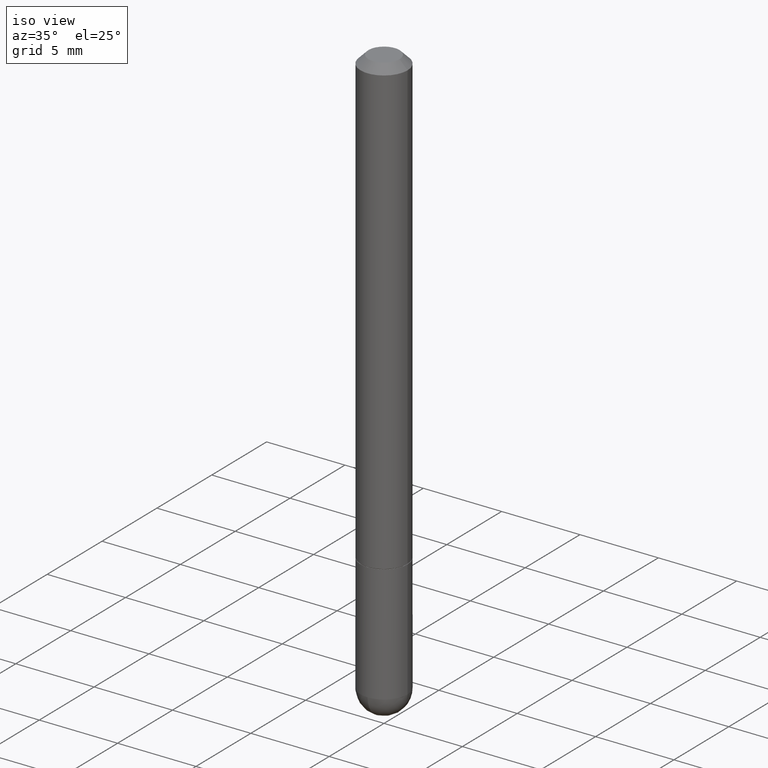
[diagram: clean part render]
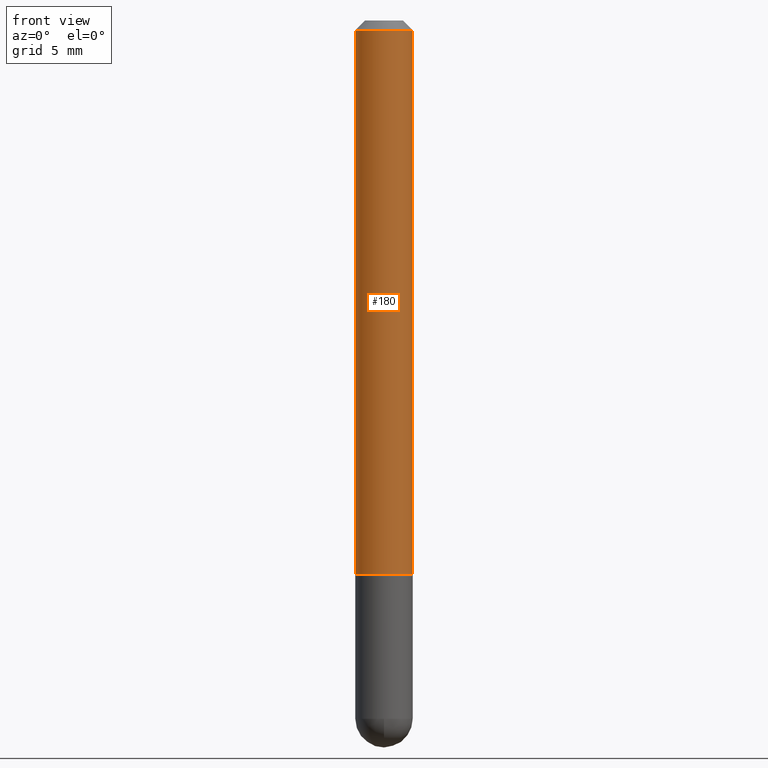
[diagram: tour spotlight — one face highlighted and labeled with its STEP entity id]
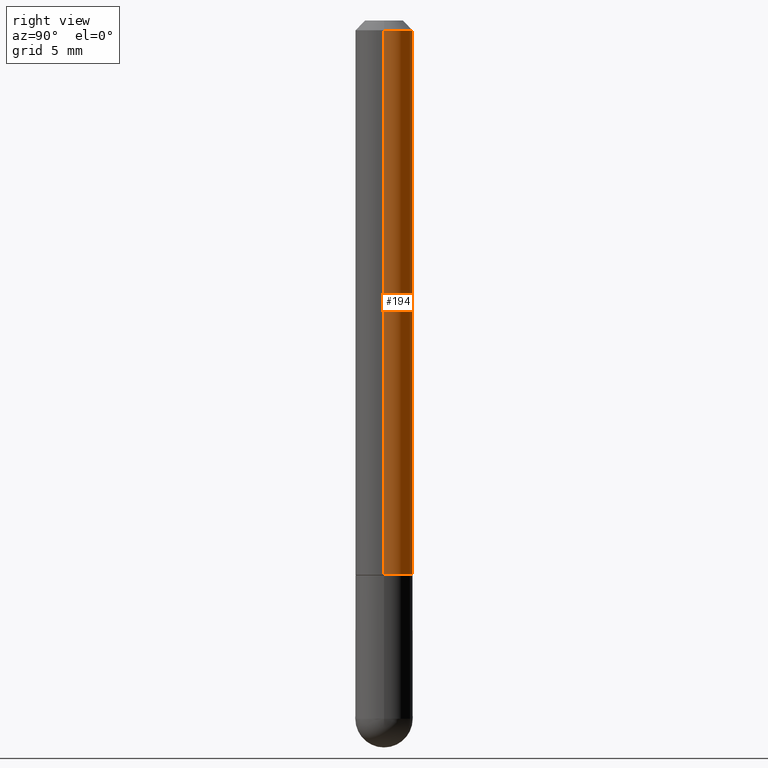
[diagram: tour spotlight — one face highlighted and labeled with its STEP entity id]
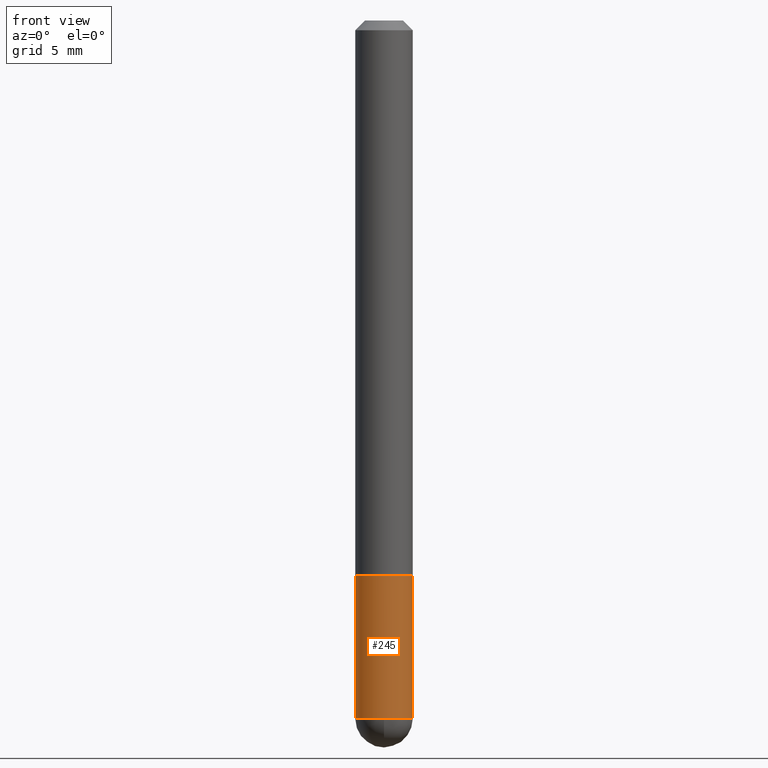
[diagram: tour spotlight — one face highlighted and labeled with its STEP entity id]
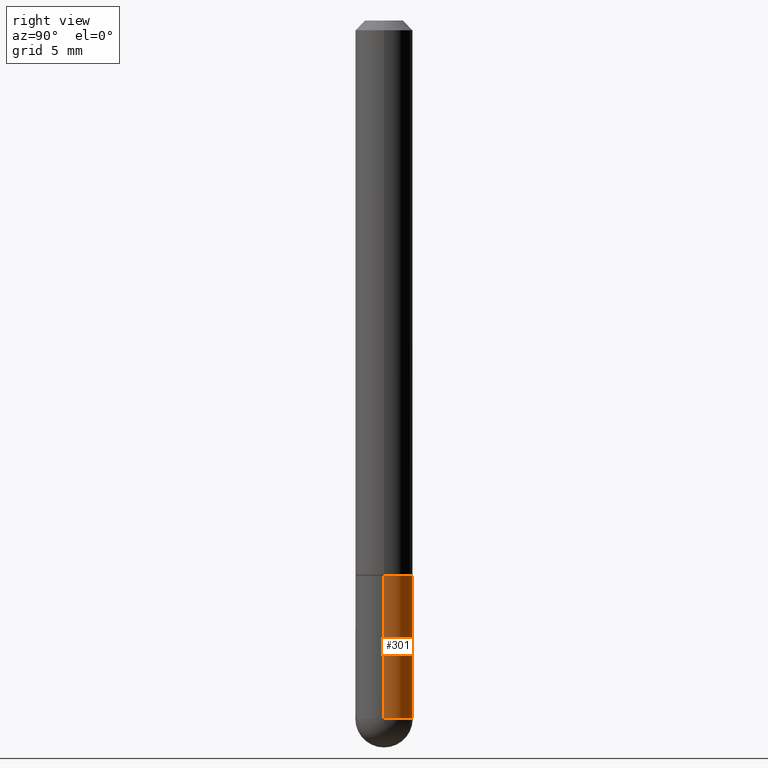
[diagram: tour spotlight — one face highlighted and labeled with its STEP entity id]
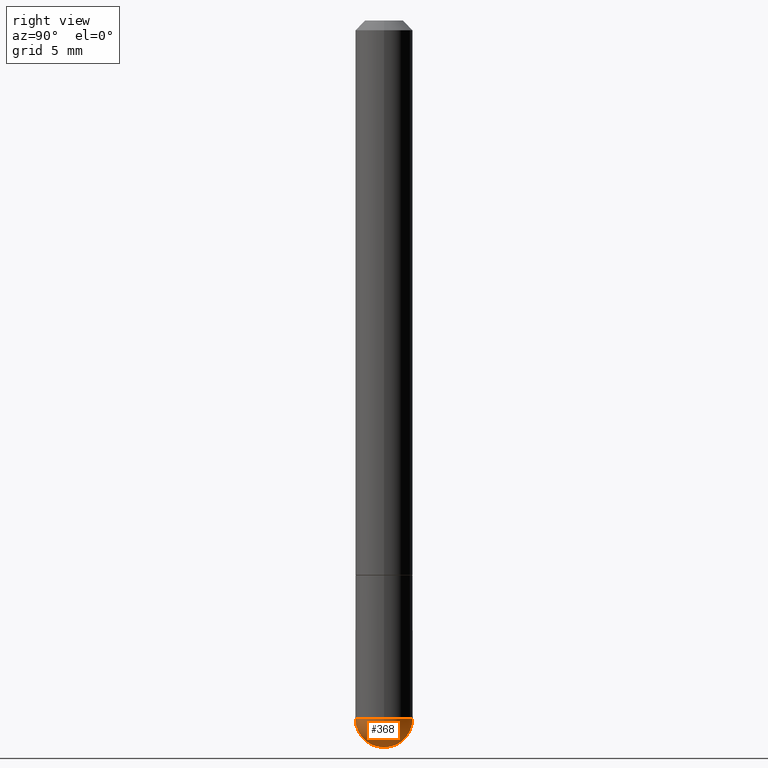
[diagram: tour spotlight — one face highlighted and labeled with its STEP entity id]
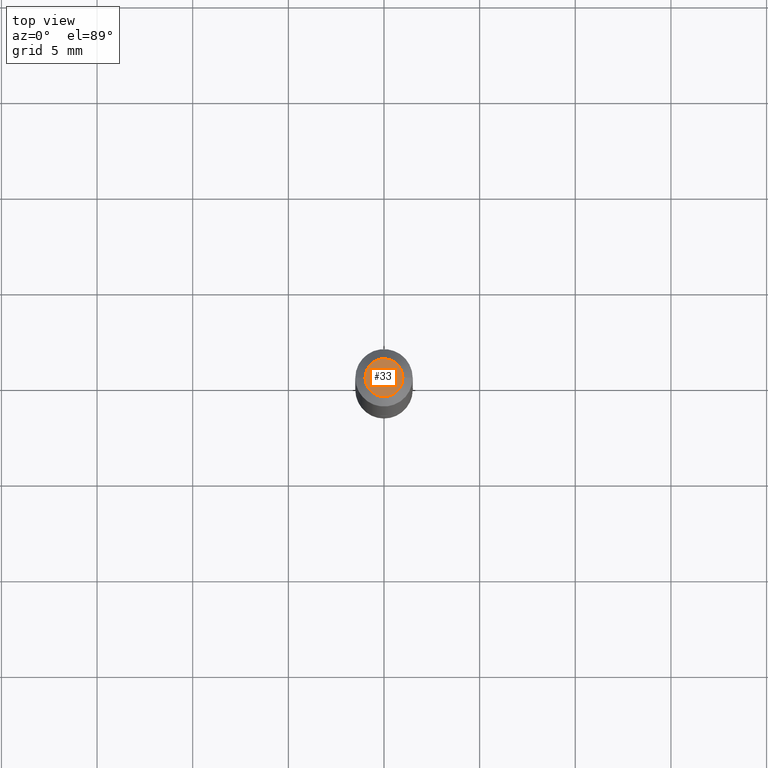
[diagram: tour spotlight — one face highlighted and labeled with its STEP entity id]
A machine part: a face-by-face anatomy tour. The part has 13 B-rep faces; the first image is the clean iso view, then the 6 largest visible faces are spotlighted one at a time (largest first), each with its STEP entity span.

Face 1 — front view, entity #180. In plain terms, the highlighted cylindrical surface (edge-blend (fillet) strip) has radius 1.4999 mm, axis along (-0, 0, 1).
Definition (entity closure, byte-faithful):
#5 = CARTESIAN_POINT ( 'NONE',  ( -0.05905000000000000526, 3.425143193405111289E-16, -0.02000000000000002123 ) ) ;
#6 = ORIENTED_EDGE ( 'NONE', *, *, #290, .F. ) ;
#8 = CARTESIAN_POINT ( 'NONE',  ( -0.05905000000000007465, 4.195754854663396902E-16, -2.904631170795525395E-30 ) ) ;
#20 = CARTESIAN_POINT ( 'NONE',  ( 2.789790814096003463E-29, -3.983081911352260315E-15, -1.140799999999999814 ) ) ;
#48 = EDGE_CURVE ( 'NONE', #140, #347, #104, .T. ) ;
#54 = DIRECTION ( 'NONE',  ( -2.445468806185136597E-29, 3.491481338843145583E-15, 1.000000000000000000 ) ) ;
#62 = CIRCLE ( 'NONE', #299, 0.05905000000000000526 ) ;
#83 = ORIENTED_EDGE ( 'NONE', *, *, #310, .F. ) ;
#86 = EDGE_CURVE ( 'NONE', #347, #156, #152, .T. ) ;
#87 = DIRECTION ( 'NONE',  ( 1.000000000000000000, -6.982962677686266711E-15, 4.876176775795936353E-29 ) ) ;
#94 = CARTESIAN_POINT ( 'NONE',  ( 0.05905000000000007465, -4.123439461173745750E-16, 2.879382386107504074E-30 ) ) ;
#104 = CIRCLE ( 'NONE', #398, 0.05905000000000014404 ) ;
#118 = CARTESIAN_POINT ( 'NONE',  ( 4.890937612370278413E-31, -6.982962677686297772E-17, -0.02000000000000002123 ) ) ;
#140 = VERTEX_POINT ( 'NONE', #355 ) ;
#149 = FACE_OUTER_BOUND ( 'NONE', #336, .T. ) ;
#152 = LINE ( 'NONE', #94, #275 ) ;
#156 = VERTEX_POINT ( 'NONE', #287 ) ;
#160 = LINE ( 'NONE', #8, #238 ) ;
#180 = ADVANCED_FACE ( 'NONE', ( #149 ), #191, .T. ) ;
#191 = CYLINDRICAL_SURFACE ( 'NONE', #303, 0.05905000000000007465 ) ;
#196 = VERTEX_POINT ( 'NONE', #5 ) ;
#217 = DIRECTION ( 'NONE',  ( 1.000000000000000000, -6.982962677686267499E-15, 0.000000000000000000 ) ) ;
#238 = VECTOR ( 'NONE', #264, 39.37007874015748143 ) ;
#249 = DIRECTION ( 'NONE',  ( -2.445468806185136597E-29, 3.491481338843145583E-15, 1.000000000000000000 ) ) ;
#257 = CARTESIAN_POINT ( 'NONE',  ( 0.05905000000000014404, -4.395425857469635235E-15, -1.140799999999999814 ) ) ;
#264 = DIRECTION ( 'NONE',  ( -2.445468806185136877E-29, 3.491481338843145188E-15, 1.000000000000000000 ) ) ;
#275 = VECTOR ( 'NONE', #411, 39.37007874015748143 ) ;
#287 = CARTESIAN_POINT ( 'NONE',  ( 0.05905000000000000526, -4.749420335452719692E-16, -0.02000000000000002123 ) ) ;
#290 = EDGE_CURVE ( 'NONE', #140, #196, #160, .T. ) ;
#296 = ORIENTED_EDGE ( 'NONE', *, *, #86, .T. ) ;
#299 = AXIS2_PLACEMENT_3D ( 'NONE', #118, #249, #217 ) ;
#303 = AXIS2_PLACEMENT_3D ( 'NONE', #350, #311, #87 ) ;
#307 = DIRECTION ( 'NONE',  ( 1.000000000000000000, -6.982962677686263555E-15, 0.000000000000000000 ) ) ;
#310 = EDGE_CURVE ( 'NONE', #196, #156, #62, .T. ) ;
#311 = DIRECTION ( 'NONE',  ( -2.445468806185136597E-29, 3.491481338843145583E-15, 1.000000000000000000 ) ) ;
#336 = EDGE_LOOP ( 'NONE', ( #6, #367, #296, #83 ) ) ;
#347 = VERTEX_POINT ( 'NONE', #257 ) ;
#350 = CARTESIAN_POINT ( 'NONE',  ( 0.000000000000000000, 0.000000000000000000, 0.000000000000000000 ) ) ;
#355 = CARTESIAN_POINT ( 'NONE',  ( -0.05905000000000014404, -1.606880283598219355E-15, -1.140799999999999814 ) ) ;
#367 = ORIENTED_EDGE ( 'NONE', *, *, #48, .T. ) ;
#398 = AXIS2_PLACEMENT_3D ( 'NONE', #20, #54, #307 ) ;
#411 = DIRECTION ( 'NONE',  ( -2.445468806185136877E-29, 3.491481338843145188E-15, 1.000000000000000000 ) ) ;

Face 2 — right view, entity #194. In plain terms, the highlighted cylindrical surface (edge-blend (fillet) strip) has radius 1.4999 mm, axis along (-0, 0, 1).
Definition (entity closure, byte-faithful):
#5 = CARTESIAN_POINT ( 'NONE',  ( -0.05905000000000000526, 3.425143193405111289E-16, -0.02000000000000002123 ) ) ;
#8 = CARTESIAN_POINT ( 'NONE',  ( -0.05905000000000007465, 4.195754854663396902E-16, -2.904631170795525395E-30 ) ) ;
#21 = ORIENTED_EDGE ( 'NONE', *, *, #390, .T. ) ;
#39 = ORIENTED_EDGE ( 'NONE', *, *, #86, .F. ) ;
#56 = ORIENTED_EDGE ( 'NONE', *, *, #141, .F. ) ;
#66 = CYLINDRICAL_SURFACE ( 'NONE', #244, 0.05905000000000007465 ) ;
#69 = DIRECTION ( 'NONE',  ( -2.445468806185136597E-29, 3.491481338843145583E-15, 1.000000000000000000 ) ) ;
#84 = CIRCLE ( 'NONE', #137, 0.05905000000000000526 ) ;
#86 = EDGE_CURVE ( 'NONE', #347, #156, #152, .T. ) ;
#94 = CARTESIAN_POINT ( 'NONE',  ( 0.05905000000000007465, -4.123439461173745750E-16, 2.879382386107504074E-30 ) ) ;
#137 = AXIS2_PLACEMENT_3D ( 'NONE', #318, #69, #383 ) ;
#140 = VERTEX_POINT ( 'NONE', #355 ) ;
#141 = EDGE_CURVE ( 'NONE', #156, #196, #84, .T. ) ;
#152 = LINE ( 'NONE', #94, #275 ) ;
#156 = VERTEX_POINT ( 'NONE', #287 ) ;
#160 = LINE ( 'NONE', #8, #238 ) ;
#164 = EDGE_LOOP ( 'NONE', ( #21, #319, #56, #39 ) ) ;
#192 = DIRECTION ( 'NONE',  ( -2.445468806185136597E-29, 3.491481338843145583E-15, 1.000000000000000000 ) ) ;
#194 = ADVANCED_FACE ( 'NONE', ( #316 ), #66, .T. ) ;
#195 = DIRECTION ( 'NONE',  ( 1.000000000000000000, -6.982962677686266711E-15, 4.876176775795936353E-29 ) ) ;
#196 = VERTEX_POINT ( 'NONE', #5 ) ;
#234 = DIRECTION ( 'NONE',  ( -2.445468806185136597E-29, 3.491481338843145583E-15, 1.000000000000000000 ) ) ;
#238 = VECTOR ( 'NONE', #264, 39.37007874015748143 ) ;
#244 = AXIS2_PLACEMENT_3D ( 'NONE', #377, #234, #195 ) ;
#257 = CARTESIAN_POINT ( 'NONE',  ( 0.05905000000000014404, -4.395425857469635235E-15, -1.140799999999999814 ) ) ;
#264 = DIRECTION ( 'NONE',  ( -2.445468806185136877E-29, 3.491481338843145188E-15, 1.000000000000000000 ) ) ;
#275 = VECTOR ( 'NONE', #411, 39.37007874015748143 ) ;
#287 = CARTESIAN_POINT ( 'NONE',  ( 0.05905000000000000526, -4.749420335452719692E-16, -0.02000000000000002123 ) ) ;
#290 = EDGE_CURVE ( 'NONE', #140, #196, #160, .T. ) ;
#316 = FACE_OUTER_BOUND ( 'NONE', #164, .T. ) ;
#317 = DIRECTION ( 'NONE',  ( 1.000000000000000000, -6.982962677686263555E-15, 0.000000000000000000 ) ) ;
#318 = CARTESIAN_POINT ( 'NONE',  ( 4.890937612370278413E-31, -6.982962677686297772E-17, -0.02000000000000002123 ) ) ;
#319 = ORIENTED_EDGE ( 'NONE', *, *, #290, .T. ) ;
#337 = AXIS2_PLACEMENT_3D ( 'NONE', #382, #192, #317 ) ;
#347 = VERTEX_POINT ( 'NONE', #257 ) ;
#355 = CARTESIAN_POINT ( 'NONE',  ( -0.05905000000000014404, -1.606880283598219355E-15, -1.140799999999999814 ) ) ;
#377 = CARTESIAN_POINT ( 'NONE',  ( 0.000000000000000000, 0.000000000000000000, 0.000000000000000000 ) ) ;
#382 = CARTESIAN_POINT ( 'NONE',  ( 2.789790814096003463E-29, -3.983081911352260315E-15, -1.140799999999999814 ) ) ;
#383 = DIRECTION ( 'NONE',  ( 1.000000000000000000, -6.982962677686267499E-15, 0.000000000000000000 ) ) ;
#385 = CIRCLE ( 'NONE', #337, 0.05905000000000014404 ) ;
#390 = EDGE_CURVE ( 'NONE', #347, #140, #385, .T. ) ;
#411 = DIRECTION ( 'NONE',  ( -2.445468806185136877E-29, 3.491481338843145188E-15, 1.000000000000000000 ) ) ;

Face 3 — front view, entity #245. In plain terms, the highlighted cylindrical surface (edge-blend (fillet) strip) has radius 1.4999 mm, axis along (-0, 0, 1).
Definition (entity closure, byte-faithful):
#1 = EDGE_CURVE ( 'NONE', #112, #306, #370, .T. ) ;
#2 = CARTESIAN_POINT ( 'NONE',  ( 2.792236282902188505E-29, -3.986573392691103322E-15, -1.141799999999999926 ) ) ;
#9 = ORIENTED_EDGE ( 'NONE', *, *, #78, .T. ) ;
#19 = VERTEX_POINT ( 'NONE', #81 ) ;
#24 = CARTESIAN_POINT ( 'NONE',  ( -0.05904999999999999832, 4.195754854663391478E-16, -2.904631170795521892E-30 ) ) ;
#27 = CIRCLE ( 'NONE', #109, 0.05905000000000000526 ) ;
#30 = CARTESIAN_POINT ( 'NONE',  ( -0.05905000000000001914, -4.082427839871483465E-15, -1.437049999999999939 ) ) ;
#50 = CARTESIAN_POINT ( 'NONE',  ( 0.05904999999999999832, -4.398917338808476664E-15, -1.141799999999999926 ) ) ;
#52 = AXIS2_PLACEMENT_3D ( 'NONE', #2, #386, #380 ) ;
#61 = CYLINDRICAL_SURFACE ( 'NONE', #169, 0.05904999999999999832 ) ;
#76 = ORIENTED_EDGE ( 'NONE', *, *, #219, .F. ) ;
#78 = EDGE_CURVE ( 'NONE', #99, #95, #27, .T. ) ;
#81 = CARTESIAN_POINT ( 'NONE',  ( -0.05904999999999999832, -4.082427839871483465E-15, -1.141799999999999926 ) ) ;
#95 = VERTEX_POINT ( 'NONE', #387 ) ;
#99 = VERTEX_POINT ( 'NONE', #30 ) ;
#101 = EDGE_CURVE ( 'NONE', #95, #112, #369, .T. ) ;
#109 = AXIS2_PLACEMENT_3D ( 'NONE', #155, #256, #129 ) ;
#112 = VERTEX_POINT ( 'NONE', #228 ) ;
#129 = DIRECTION ( 'NONE',  ( 1.000000000000000000, -6.982962677686272233E-15, 0.000000000000000000 ) ) ;
#147 = DIRECTION ( 'NONE',  ( -2.445468806185136877E-29, 3.491481338843145188E-15, 1.000000000000000000 ) ) ;
#153 = CARTESIAN_POINT ( 'NONE',  ( 3.514260947928350449E-29, -5.017433257984542594E-15, -1.437049999999999939 ) ) ;
#155 = CARTESIAN_POINT ( 'NONE',  ( 3.514260947928350449E-29, -5.017433257984542594E-15, -1.437049999999999939 ) ) ;
#169 = AXIS2_PLACEMENT_3D ( 'NONE', #186, #252, #225 ) ;
#171 = ORIENTED_EDGE ( 'NONE', *, *, #101, .T. ) ;
#178 = CARTESIAN_POINT ( 'NONE',  ( 0.05904999999999999832, -4.123439461173740327E-16, 2.879382386107500220E-30 ) ) ;
#183 = DIRECTION ( 'NONE',  ( -2.445468806185136877E-29, 3.491481338843145188E-15, 1.000000000000000000 ) ) ;
#186 = CARTESIAN_POINT ( 'NONE',  ( 0.000000000000000000, 0.000000000000000000, 0.000000000000000000 ) ) ;
#201 = VECTOR ( 'NONE', #147, 39.37007874015748143 ) ;
#219 = EDGE_CURVE ( 'NONE', #99, #19, #254, .T. ) ;
#224 = CIRCLE ( 'NONE', #52, 0.05904999999999999832 ) ;
#225 = DIRECTION ( 'NONE',  ( 1.000000000000000000, -6.982962677686266711E-15, 4.876176775795936353E-29 ) ) ;
#227 = FACE_OUTER_BOUND ( 'NONE', #402, .T. ) ;
#228 = CARTESIAN_POINT ( 'NONE',  ( 0.05905000000000001914, -4.914347271455197089E-15, -1.437049999999999939 ) ) ;
#231 = DIRECTION ( 'NONE',  ( -2.445468806185136597E-29, 3.491481338843145583E-15, 1.000000000000000000 ) ) ;
#245 = ADVANCED_FACE ( 'NONE', ( #227 ), #61, .T. ) ;
#252 = DIRECTION ( 'NONE',  ( -2.445468806185136597E-29, 3.491481338843145583E-15, 1.000000000000000000 ) ) ;
#254 = LINE ( 'NONE', #24, #201 ) ;
#256 = DIRECTION ( 'NONE',  ( -2.445468806185136597E-29, 3.491481338843145583E-15, 1.000000000000000000 ) ) ;
#265 = ORIENTED_EDGE ( 'NONE', *, *, #406, .F. ) ;
#271 = ORIENTED_EDGE ( 'NONE', *, *, #1, .T. ) ;
#306 = VERTEX_POINT ( 'NONE', #50 ) ;
#338 = VECTOR ( 'NONE', #183, 39.37007874015748143 ) ;
#362 = AXIS2_PLACEMENT_3D ( 'NONE', #153, #231, #412 ) ;
#369 = CIRCLE ( 'NONE', #362, 0.05905000000000000526 ) ;
#370 = LINE ( 'NONE', #178, #338 ) ;
#380 = DIRECTION ( 'NONE',  ( 1.000000000000000000, -6.982962677686265133E-15, 0.000000000000000000 ) ) ;
#386 = DIRECTION ( 'NONE',  ( -2.445468806185136597E-29, 3.491481338843145583E-15, 1.000000000000000000 ) ) ;
#387 = CARTESIAN_POINT ( 'NONE',  ( -4.195754854663065087E-16, -0.05905000000000538291, -1.437049999999999716 ) ) ;
#402 = EDGE_LOOP ( 'NONE', ( #76, #9, #171, #271, #265 ) ) ;
#406 = EDGE_CURVE ( 'NONE', #19, #306, #224, .T. ) ;
#412 = DIRECTION ( 'NONE',  ( 1.000000000000000000, -6.982962677686272233E-15, 0.000000000000000000 ) ) ;

Face 4 — right view, entity #301. In plain terms, the highlighted cylindrical surface (edge-blend (fillet) strip) has radius 1.4999 mm, axis along (-0, 0, 1).
Definition (entity closure, byte-faithful):
#1 = EDGE_CURVE ( 'NONE', #112, #306, #370, .T. ) ;
#3 = CARTESIAN_POINT ( 'NONE',  ( 0.000000000000000000, 0.000000000000000000, 0.000000000000000000 ) ) ;
#11 = EDGE_LOOP ( 'NONE', ( #105, #75, #262, #384, #236 ) ) ;
#19 = VERTEX_POINT ( 'NONE', #81 ) ;
#24 = CARTESIAN_POINT ( 'NONE',  ( -0.05904999999999999832, 4.195754854663391478E-16, -2.904631170795521892E-30 ) ) ;
#30 = CARTESIAN_POINT ( 'NONE',  ( -0.05905000000000001914, -4.082427839871483465E-15, -1.437049999999999939 ) ) ;
#47 = CYLINDRICAL_SURFACE ( 'NONE', #247, 0.05904999999999999832 ) ;
#50 = CARTESIAN_POINT ( 'NONE',  ( 0.05904999999999999832, -4.398917338808476664E-15, -1.141799999999999926 ) ) ;
#51 = AXIS2_PLACEMENT_3D ( 'NONE', #125, #261, #89 ) ;
#75 = ORIENTED_EDGE ( 'NONE', *, *, #219, .T. ) ;
#80 = DIRECTION ( 'NONE',  ( -2.445468806185136597E-29, 3.491481338843145583E-15, 1.000000000000000000 ) ) ;
#81 = CARTESIAN_POINT ( 'NONE',  ( -0.05904999999999999832, -4.082427839871483465E-15, -1.141799999999999926 ) ) ;
#89 = DIRECTION ( 'NONE',  ( 1.000000000000000000, -6.982962677686272233E-15, 0.000000000000000000 ) ) ;
#92 = AXIS2_PLACEMENT_3D ( 'NONE', #96, #360, #349 ) ;
#96 = CARTESIAN_POINT ( 'NONE',  ( 3.514260947928350449E-29, -5.017433257984542594E-15, -1.437049999999999939 ) ) ;
#97 = DIRECTION ( 'NONE',  ( 1.000000000000000000, -6.982962677686266711E-15, 4.876176775795936353E-29 ) ) ;
#99 = VERTEX_POINT ( 'NONE', #30 ) ;
#105 = ORIENTED_EDGE ( 'NONE', *, *, #345, .T. ) ;
#108 = EDGE_CURVE ( 'NONE', #112, #359, #182, .T. ) ;
#112 = VERTEX_POINT ( 'NONE', #228 ) ;
#125 = CARTESIAN_POINT ( 'NONE',  ( 3.514260947928350449E-29, -5.017433257984542594E-15, -1.437049999999999939 ) ) ;
#132 = CARTESIAN_POINT ( 'NONE',  ( 2.792236282902188505E-29, -3.986573392691103322E-15, -1.141799999999999926 ) ) ;
#134 = CARTESIAN_POINT ( 'NONE',  ( 4.123439461174083974E-16, 0.05904999999999487742, -1.437050000000000161 ) ) ;
#147 = DIRECTION ( 'NONE',  ( -2.445468806185136877E-29, 3.491481338843145188E-15, 1.000000000000000000 ) ) ;
#178 = CARTESIAN_POINT ( 'NONE',  ( 0.05904999999999999832, -4.123439461173740327E-16, 2.879382386107500220E-30 ) ) ;
#182 = CIRCLE ( 'NONE', #51, 0.05905000000000000526 ) ;
#183 = DIRECTION ( 'NONE',  ( -2.445468806185136877E-29, 3.491481338843145188E-15, 1.000000000000000000 ) ) ;
#199 = EDGE_CURVE ( 'NONE', #306, #19, #269, .T. ) ;
#201 = VECTOR ( 'NONE', #147, 39.37007874015748143 ) ;
#219 = EDGE_CURVE ( 'NONE', #99, #19, #254, .T. ) ;
#221 = FACE_OUTER_BOUND ( 'NONE', #11, .T. ) ;
#228 = CARTESIAN_POINT ( 'NONE',  ( 0.05905000000000001914, -4.914347271455197089E-15, -1.437049999999999939 ) ) ;
#236 = ORIENTED_EDGE ( 'NONE', *, *, #108, .T. ) ;
#247 = AXIS2_PLACEMENT_3D ( 'NONE', #3, #80, #97 ) ;
#254 = LINE ( 'NONE', #24, #201 ) ;
#261 = DIRECTION ( 'NONE',  ( -2.445468806185136597E-29, 3.491481338843145583E-15, 1.000000000000000000 ) ) ;
#262 = ORIENTED_EDGE ( 'NONE', *, *, #199, .F. ) ;
#269 = CIRCLE ( 'NONE', #376, 0.05904999999999999832 ) ;
#280 = CIRCLE ( 'NONE', #92, 0.05905000000000000526 ) ;
#285 = DIRECTION ( 'NONE',  ( -2.445468806185136597E-29, 3.491481338843145583E-15, 1.000000000000000000 ) ) ;
#301 = ADVANCED_FACE ( 'NONE', ( #221 ), #47, .T. ) ;
#306 = VERTEX_POINT ( 'NONE', #50 ) ;
#338 = VECTOR ( 'NONE', #183, 39.37007874015748143 ) ;
#345 = EDGE_CURVE ( 'NONE', #359, #99, #280, .T. ) ;
#349 = DIRECTION ( 'NONE',  ( 1.000000000000000000, -6.982962677686272233E-15, 0.000000000000000000 ) ) ;
#359 = VERTEX_POINT ( 'NONE', #134 ) ;
#360 = DIRECTION ( 'NONE',  ( -2.445468806185136597E-29, 3.491481338843145583E-15, 1.000000000000000000 ) ) ;
#370 = LINE ( 'NONE', #178, #338 ) ;
#376 = AXIS2_PLACEMENT_3D ( 'NONE', #132, #285, #410 ) ;
#384 = ORIENTED_EDGE ( 'NONE', *, *, #1, .F. ) ;
#410 = DIRECTION ( 'NONE',  ( 1.000000000000000000, -6.982962677686265133E-15, 0.000000000000000000 ) ) ;

Face 5 — right view, entity #368. In plain terms, the highlighted spherical surface has radius 1.4999 mm.
Definition (entity closure, byte-faithful):
#4 = CIRCLE ( 'NONE', #158, 0.05905000000000025506 ) ;
#13 = DIRECTION ( 'NONE',  ( -1.000000000000000000, 7.105427357601001070E-15, -4.926315508542082329E-29 ) ) ;
#31 = DIRECTION ( 'NONE',  ( -1.000000000000000000, 6.982962677686265922E-15, -4.883557194083112340E-29 ) ) ;
#51 = AXIS2_PLACEMENT_3D ( 'NONE', #125, #261, #89 ) ;
#59 = DIRECTION ( 'NONE',  ( 1.000000000000000000, -6.982962677686265922E-15, 4.883557194083112340E-29 ) ) ;
#63 = DIRECTION ( 'NONE',  ( 6.982962677686266711E-15, 1.000000000000000000, 0.000000000000000000 ) ) ;
#64 = CARTESIAN_POINT ( 'NONE',  ( 3.183141170014464762E-29, -5.491615626124592102E-15, -1.437049999999999939 ) ) ;
#89 = DIRECTION ( 'NONE',  ( 1.000000000000000000, -6.982962677686272233E-15, 0.000000000000000000 ) ) ;
#95 = VERTEX_POINT ( 'NONE', #387 ) ;
#100 = DIRECTION ( 'NONE',  ( 6.982962677686265922E-15, 1.000000000000000000, -4.626330217890349615E-15 ) ) ;
#101 = EDGE_CURVE ( 'NONE', #95, #112, #369, .T. ) ;
#108 = EDGE_CURVE ( 'NONE', #112, #359, #182, .T. ) ;
#112 = VERTEX_POINT ( 'NONE', #228 ) ;
#125 = CARTESIAN_POINT ( 'NONE',  ( 3.514260947928350449E-29, -5.017433257984542594E-15, -1.437049999999999939 ) ) ;
#127 = CARTESIAN_POINT ( 'NONE',  ( 3.183141170014464762E-29, -5.491615626124592102E-15, -1.437049999999999939 ) ) ;
#130 = FACE_OUTER_BOUND ( 'NONE', #135, .T. ) ;
#134 = CARTESIAN_POINT ( 'NONE',  ( 4.123439461174083974E-16, 0.05904999999999487742, -1.437050000000000161 ) ) ;
#135 = EDGE_LOOP ( 'NONE', ( #166, #278, #356, #340 ) ) ;
#143 = DIRECTION ( 'NONE',  ( -7.105427357601001070E-15, -1.000000000000000000, 0.000000000000000000 ) ) ;
#153 = CARTESIAN_POINT ( 'NONE',  ( 3.514260947928350449E-29, -5.017433257984542594E-15, -1.437049999999999939 ) ) ;
#154 = CARTESIAN_POINT ( 'NONE',  ( 3.330070981488499955E-29, -5.694171829508798064E-15, -1.496100000000000207 ) ) ;
#158 = AXIS2_PLACEMENT_3D ( 'NONE', #127, #59, #63 ) ;
#166 = ORIENTED_EDGE ( 'NONE', *, *, #274, .F. ) ;
#168 = EDGE_CURVE ( 'NONE', #395, #359, #4, .T. ) ;
#182 = CIRCLE ( 'NONE', #51, 0.05905000000000000526 ) ;
#228 = CARTESIAN_POINT ( 'NONE',  ( 0.05905000000000001914, -4.914347271455197089E-15, -1.437049999999999939 ) ) ;
#231 = DIRECTION ( 'NONE',  ( -2.445468806185136597E-29, 3.491481338843145583E-15, 1.000000000000000000 ) ) ;
#261 = DIRECTION ( 'NONE',  ( -2.445468806185136597E-29, 3.491481338843145583E-15, 1.000000000000000000 ) ) ;
#274 = EDGE_CURVE ( 'NONE', #395, #95, #371, .T. ) ;
#278 = ORIENTED_EDGE ( 'NONE', *, *, #168, .T. ) ;
#313 = SPHERICAL_SURFACE ( 'NONE', #332, 0.05905000000000025506 ) ;
#332 = AXIS2_PLACEMENT_3D ( 'NONE', #64, #31, #100 ) ;
#334 = CARTESIAN_POINT ( 'NONE',  ( 3.183141170014464762E-29, -5.491615626124592102E-15, -1.437049999999999939 ) ) ;
#340 = ORIENTED_EDGE ( 'NONE', *, *, #101, .F. ) ;
#356 = ORIENTED_EDGE ( 'NONE', *, *, #108, .F. ) ;
#359 = VERTEX_POINT ( 'NONE', #134 ) ;
#362 = AXIS2_PLACEMENT_3D ( 'NONE', #153, #231, #412 ) ;
#368 = ADVANCED_FACE ( 'NONE', ( #130 ), #313, .T. ) ;
#369 = CIRCLE ( 'NONE', #362, 0.05905000000000000526 ) ;
#371 = CIRCLE ( 'NONE', #409, 0.05905000000000025506 ) ;
#387 = CARTESIAN_POINT ( 'NONE',  ( -4.195754854663065087E-16, -0.05905000000000538291, -1.437049999999999716 ) ) ;
#395 = VERTEX_POINT ( 'NONE', #154 ) ;
#409 = AXIS2_PLACEMENT_3D ( 'NONE', #334, #13, #143 ) ;
#412 = DIRECTION ( 'NONE',  ( 1.000000000000000000, -6.982962677686272233E-15, 0.000000000000000000 ) ) ;

Face 6 — top view, entity #33. In plain terms, the highlighted planar face has unit normal (0, -0, -1).
Definition (entity closure, byte-faithful):
#23 = AXIS2_PLACEMENT_3D ( 'NONE', #407, #179, #139 ) ;
#25 = DIRECTION ( 'NONE',  ( 1.000000000000000000, -6.982962677686266711E-15, 4.878561691827482436E-29 ) ) ;
#33 = ADVANCED_FACE ( 'NONE', ( #396 ), #309, .F. ) ;
#35 = AXIS2_PLACEMENT_3D ( 'NONE', #116, #248, #220 ) ;
#43 = CIRCLE ( 'NONE', #35, 0.03905000000000004301 ) ;
#53 = EDGE_CURVE ( 'NONE', #144, #266, #43, .T. ) ;
#98 = DIRECTION ( 'NONE',  ( -2.445468806185136597E-29, 3.491481338843145583E-15, 1.000000000000000000 ) ) ;
#107 = ORIENTED_EDGE ( 'NONE', *, *, #53, .T. ) ;
#113 = EDGE_LOOP ( 'NONE', ( #107, #207 ) ) ;
#116 = CARTESIAN_POINT ( 'NONE',  ( 3.131554243005667043E-46, -4.471029511141352822E-32, -1.280553747030126465E-17 ) ) ;
#120 = EDGE_CURVE ( 'NONE', #266, #144, #339, .T. ) ;
#139 = DIRECTION ( 'NONE',  ( -1.000000000000000000, 6.982962677686265922E-15, -4.876176775795935793E-29 ) ) ;
#144 = VERTEX_POINT ( 'NONE', #184 ) ;
#179 = DIRECTION ( 'NONE',  ( 2.438088387897960049E-29, -3.491481338843145188E-15, -1.000000000000000000 ) ) ;
#184 = CARTESIAN_POINT ( 'NONE',  ( -0.03905000000000004301, 3.075995059520800222E-16, -1.280553747030329227E-17 ) ) ;
#207 = ORIENTED_EDGE ( 'NONE', *, *, #120, .T. ) ;
#220 = DIRECTION ( 'NONE',  ( 1.000000000000000000, -6.982962677686266711E-15, 4.878561691827482436E-29 ) ) ;
#239 = CARTESIAN_POINT ( 'NONE',  ( 0.03905000000000004301, -3.714222401791252845E-16, -1.280553747029901208E-17 ) ) ;
#248 = DIRECTION ( 'NONE',  ( -2.445468806185136597E-29, 3.491481338843145583E-15, 1.000000000000000000 ) ) ;
#266 = VERTEX_POINT ( 'NONE', #239 ) ;
#309 = PLANE ( 'NONE',  #23 ) ;
#314 = CARTESIAN_POINT ( 'NONE',  ( 3.131554243005667043E-46, -4.471029511141352822E-32, -1.280553747030126465E-17 ) ) ;
#339 = CIRCLE ( 'NONE', #344, 0.03905000000000004301 ) ;
#344 = AXIS2_PLACEMENT_3D ( 'NONE', #314, #98, #25 ) ;
#396 = FACE_OUTER_BOUND ( 'NONE', #113, .T. ) ;
#407 = CARTESIAN_POINT ( 'NONE',  ( 2.726846925636489647E-16, 0.03905000000000004301, -1.427451150169756154E-16 ) ) ;